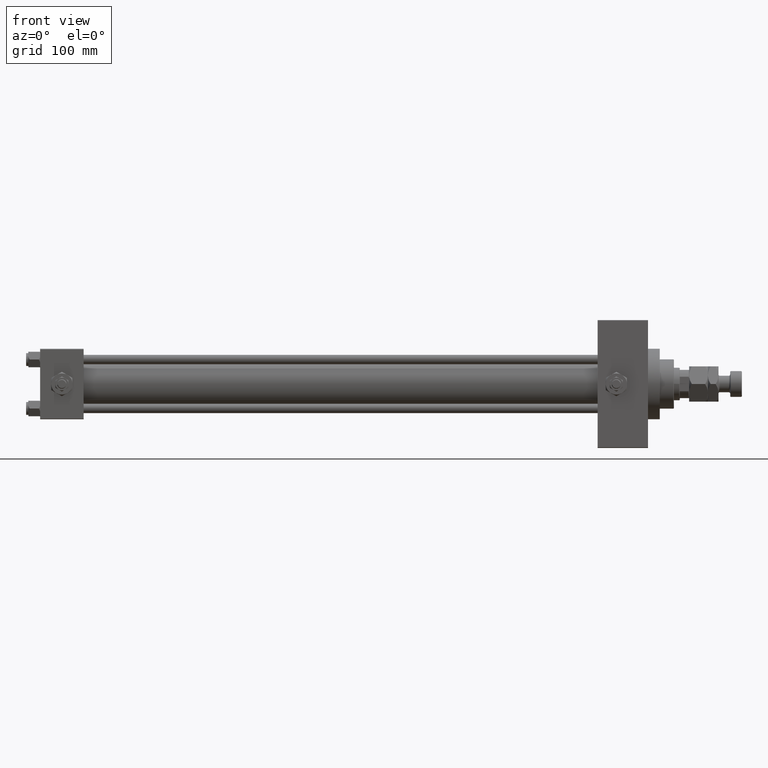
[diagram: clean part render]
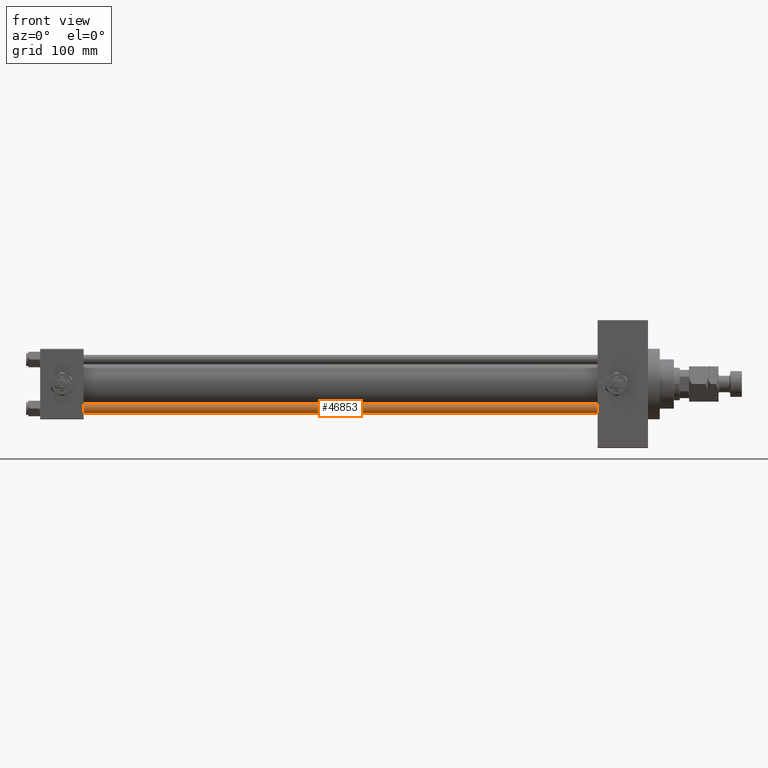
[diagram: same view with one face highlighted and labeled with its STEP entity id]
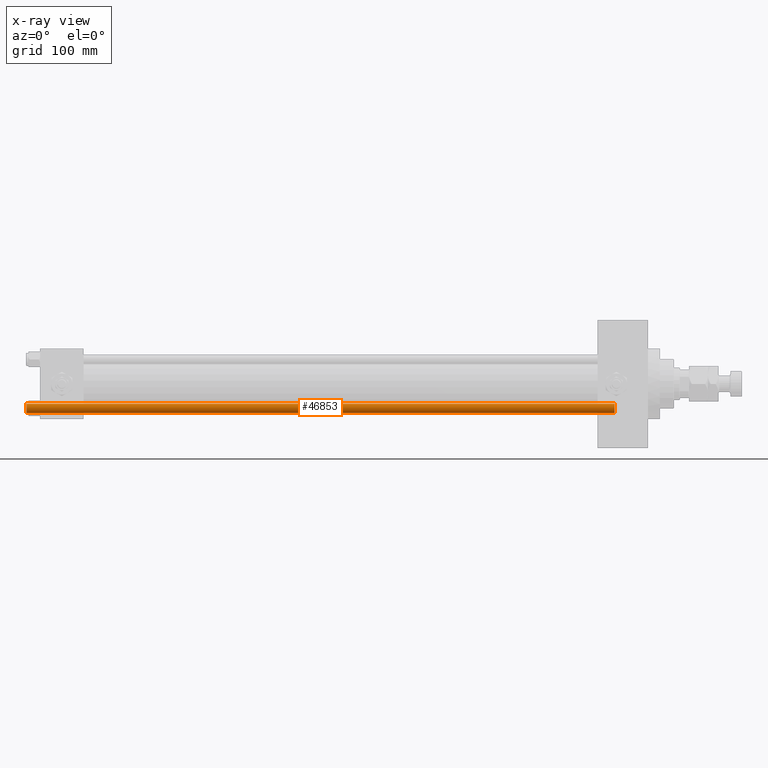
[diagram: x-ray of the same camera — body ghosted, the highlighted face saturated]
A machine part, front view. The second image highlights one B-rep face of the part: STEP entity #46853.
The next image is the same camera in x-ray: the body ghosted, the highlighted face saturated — about 0% of this face is hidden behind the body in this view.
In plain terms, the highlighted cylindrical surface (edge-blend (fillet) strip) has radius 4 mm, axis along (-1, 0, 0).
Its self-contained STEP definition (entity closure, byte-faithful):
#1390 = VECTOR ( 'NONE', #11329, 1000.000000000000000 ) ;
#6177 = LINE ( 'NONE', #21922, #1390 ) ;
#6541 = CARTESIAN_POINT ( 'NONE',  ( -4.000000000000000000, 0.000000000000000000, 501.4999999999999432 ) ) ;
#6889 = DIRECTION ( 'NONE',  ( -0.000000000000000000, -0.000000000000000000, -1.000000000000000000 ) ) ;
#8150 = AXIS2_PLACEMENT_3D ( 'NONE', #18985, #42911, #31060 ) ;
#8167 = CARTESIAN_POINT ( 'NONE',  ( -4.000000000000000000, 0.000000000000000000, 0.4999999999999449329 ) ) ;
#9537 = DIRECTION ( 'NONE',  ( 1.000000000000000000, 0.000000000000000000, 0.000000000000000000 ) ) ;
#10298 = VERTEX_POINT ( 'NONE', #8167 ) ;
#10924 = ORIENTED_EDGE ( 'NONE', *, *, #31317, .T. ) ;
#11329 = DIRECTION ( 'NONE',  ( -0.000000000000000000, -0.000000000000000000, -1.000000000000000000 ) ) ;
#12457 = EDGE_LOOP ( 'NONE', ( #20918, #18891, #10924, #34422 ) ) ;
#18891 = ORIENTED_EDGE ( 'NONE', *, *, #27124, .T. ) ;
#18985 = CARTESIAN_POINT ( 'NONE',  ( 0.000000000000000000, 0.000000000000000000, 0.4999999999999449329 ) ) ;
#20918 = ORIENTED_EDGE ( 'NONE', *, *, #48614, .T. ) ;
#21922 = CARTESIAN_POINT ( 'NONE',  ( 4.000000000000000000, 4.898587196589412829E-16, 502.0000000000000000 ) ) ;
#22628 = DIRECTION ( 'NONE',  ( -1.000000000000000000, 0.000000000000000000, 0.000000000000000000 ) ) ;
#26245 = CARTESIAN_POINT ( 'NONE',  ( 4.000000000000000000, 4.898587196589412829E-16, 0.4999999999999449329 ) ) ;
#27124 = EDGE_CURVE ( 'NONE', #46224, #29912, #6177, .T. ) ;
#27567 = AXIS2_PLACEMENT_3D ( 'NONE', #42942, #6889, #22628 ) ;
#27755 = VECTOR ( 'NONE', #45121, 1000.000000000000000 ) ;
#28600 = EDGE_CURVE ( 'NONE', #44397, #10298, #49743, .T. ) ;
#29115 = CARTESIAN_POINT ( 'NONE',  ( 0.000000000000000000, 0.000000000000000000, 501.4999999999999432 ) ) ;
#29403 = CARTESIAN_POINT ( 'NONE',  ( -4.000000000000000000, 0.000000000000000000, 502.0000000000000000 ) ) ;
#29912 = VERTEX_POINT ( 'NONE', #26245 ) ;
#31060 = DIRECTION ( 'NONE',  ( 1.000000000000000000, 0.000000000000000000, 0.000000000000000000 ) ) ;
#31317 = EDGE_CURVE ( 'NONE', #29912, #10298, #32814, .T. ) ;
#32814 = CIRCLE ( 'NONE', #8150, 4.000000000000000000 ) ;
#34422 = ORIENTED_EDGE ( 'NONE', *, *, #28600, .F. ) ;
#36689 = CIRCLE ( 'NONE', #49859, 4.000000000000000000 ) ;
#42171 = FACE_OUTER_BOUND ( 'NONE', #12457, .T. ) ;
#42911 = DIRECTION ( 'NONE',  ( -0.000000000000000000, -0.000000000000000000, 1.000000000000000000 ) ) ;
#42942 = CARTESIAN_POINT ( 'NONE',  ( 0.000000000000000000, 0.000000000000000000, 502.0000000000000000 ) ) ;
#44397 = VERTEX_POINT ( 'NONE', #6541 ) ;
#44576 = DIRECTION ( 'NONE',  ( 0.000000000000000000, 0.000000000000000000, -1.000000000000000000 ) ) ;
#45121 = DIRECTION ( 'NONE',  ( -0.000000000000000000, -0.000000000000000000, -1.000000000000000000 ) ) ;
#46224 = VERTEX_POINT ( 'NONE', #49592 ) ;
#46853 = ADVANCED_FACE ( 'NONE', ( #42171 ), #50433, .T. ) ;
#48614 = EDGE_CURVE ( 'NONE', #44397, #46224, #36689, .T. ) ;
#49592 = CARTESIAN_POINT ( 'NONE',  ( 4.000000000000000000, 4.898587196589412829E-16, 501.4999999999999432 ) ) ;
#49743 = LINE ( 'NONE', #29403, #27755 ) ;
#49859 = AXIS2_PLACEMENT_3D ( 'NONE', #29115, #44576, #9537 ) ;
#50433 = CYLINDRICAL_SURFACE ( 'NONE', #27567, 4.000000000000000000 ) ;